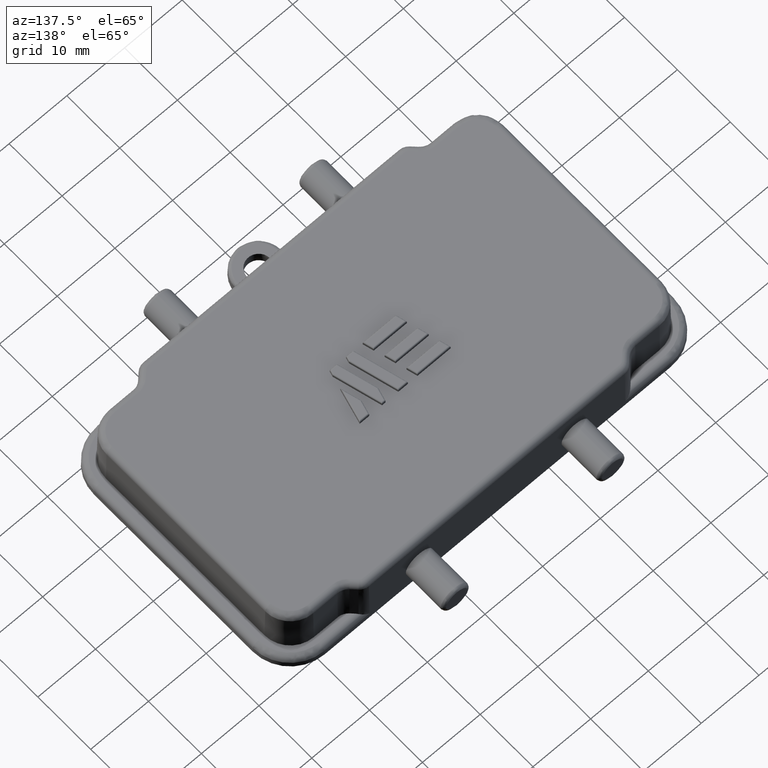
[diagram: clean part render]
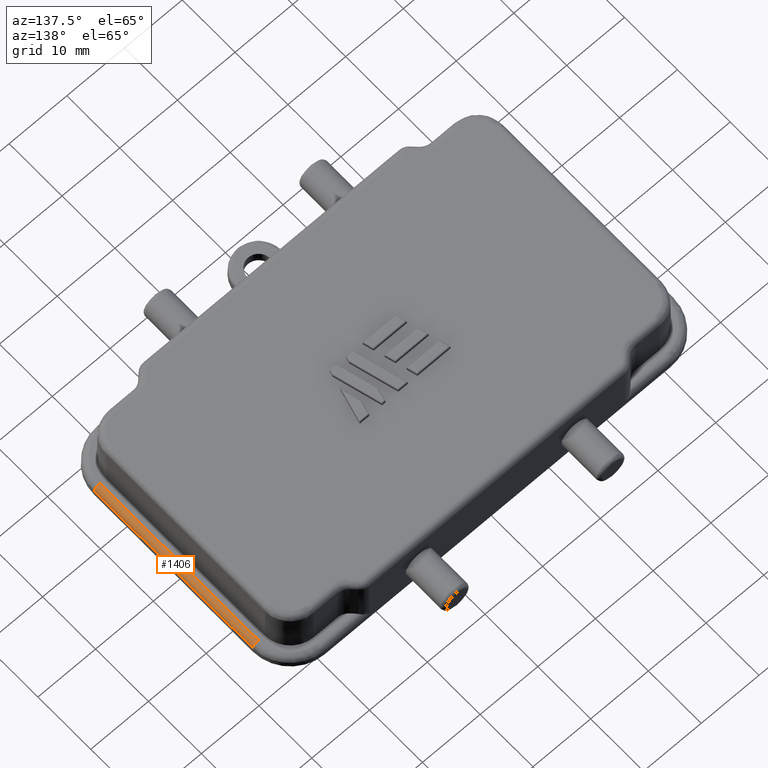
[diagram: same view with one face highlighted and labeled with its STEP entity id]
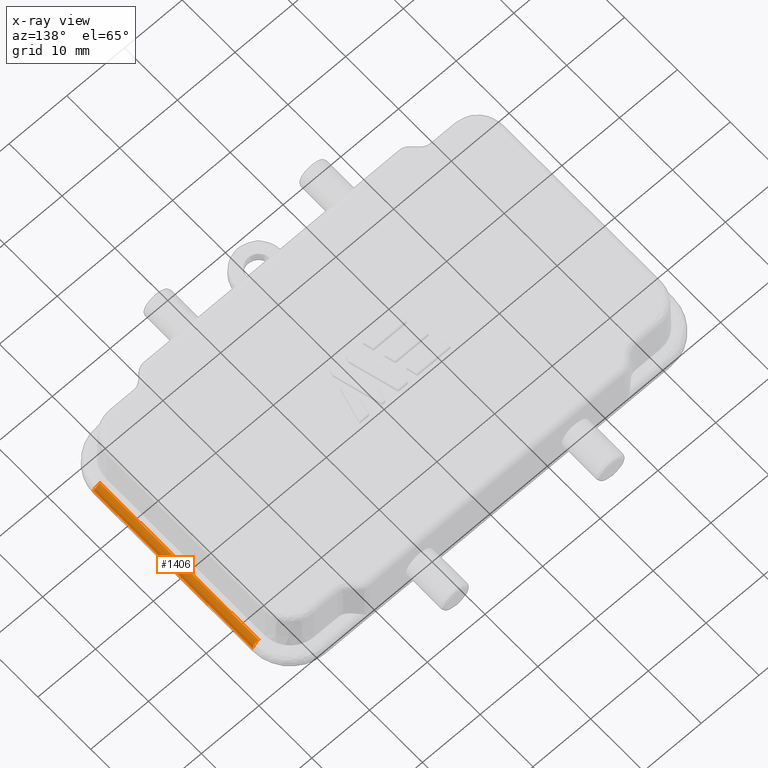
[diagram: x-ray of the same camera — body ghosted, the highlighted face saturated]
A machine part, auxiliary view. The second image highlights one B-rep face of the part: STEP entity #1406.
The next image is the same camera in x-ray: the body ghosted, the highlighted face saturated — about 0% of this face is hidden behind the body in this view.
In plain terms, the highlighted cylindrical surface (edge-blend (fillet) strip) has radius 1 mm, axis along (0, -1, 0).
Its self-contained STEP definition (entity closure, byte-faithful):
#685 = AXIS2_PLACEMENT_3D ( 'NONE', #3303, #4375, #7199 ) ;
#892 = VECTOR ( 'NONE', #6657, 39.37007874015748143 ) ;
#927 = ORIENTED_EDGE ( 'NONE', *, *, #1461, .F. ) ;
#1020 = CARTESIAN_POINT ( 'NONE',  ( 1.396944590827869925, 0.5905511811023623769, 0.1574803149606299191 ) ) ;
#1406 = ADVANCED_FACE ( 'NONE', ( #3819 ), #2801, .T. ) ;
#1461 = EDGE_CURVE ( 'NONE', #3125, #2050, #4916, .T. ) ;
#1906 = EDGE_CURVE ( 'NONE', #3125, #2447, #4154, .T. ) ;
#1943 = CARTESIAN_POINT ( 'NONE',  ( 1.436308673314537820, -0.5905511811023621549, 0.1187973388359928745 ) ) ;
#2050 = VERTEX_POINT ( 'NONE', #1943 ) ;
#2135 = CARTESIAN_POINT ( 'NONE',  ( 1.396944590827869925, 0.5905511811023623769, 0.1181102362204724532 ) ) ;
#2145 = CARTESIAN_POINT ( 'NONE',  ( 1.396944590827869703, -0.5905511811023621549, 0.1574803149606299191 ) ) ;
#2192 = CARTESIAN_POINT ( 'NONE',  ( 1.396944590827869037, -0.5905511811023621549, 0.1181102362204724532 ) ) ;
#2264 = DIRECTION ( 'NONE',  ( 1.000000000000000000, 0.000000000000000000, 0.000000000000000000 ) ) ;
#2299 = CIRCLE ( 'NONE', #6364, 0.03937007874015751446 ) ;
#2447 = VERTEX_POINT ( 'NONE', #1020 ) ;
#2589 = EDGE_CURVE ( 'NONE', #2050, #4080, #2299, .T. ) ;
#2801 = CYLINDRICAL_SURFACE ( 'NONE', #685, 0.03937007874015747977 ) ;
#2811 = DIRECTION ( 'NONE',  ( -0.000000000000000000, -1.000000000000000000, -0.000000000000000000 ) ) ;
#2879 = DIRECTION ( 'NONE',  ( 1.224646799147353207E-16, -1.000000000000000000, 0.000000000000000000 ) ) ;
#3125 = VERTEX_POINT ( 'NONE', #5563 ) ;
#3267 = CARTESIAN_POINT ( 'NONE',  ( 1.436308673314341089, -0.5905511811023621549, 0.1187973388361133614 ) ) ;
#3303 = CARTESIAN_POINT ( 'NONE',  ( 1.396944590827869925, -0.8464566929133858775, 0.1181102362204724532 ) ) ;
#3465 = EDGE_CURVE ( 'NONE', #2447, #4080, #6163, .T. ) ;
#3603 = EDGE_LOOP ( 'NONE', ( #5762, #927, #6212, #6533 ) ) ;
#3819 = FACE_OUTER_BOUND ( 'NONE', #3603, .T. ) ;
#4080 = VERTEX_POINT ( 'NONE', #2145 ) ;
#4154 = CIRCLE ( 'NONE', #5436, 0.03937007874015747977 ) ;
#4366 = DIRECTION ( 'NONE',  ( 0.000000000000000000, -1.000000000000000000, 0.000000000000000000 ) ) ;
#4375 = DIRECTION ( 'NONE',  ( 0.000000000000000000, -1.000000000000000000, 0.000000000000000000 ) ) ;
#4519 = VECTOR ( 'NONE', #2811, 39.37007874015748143 ) ;
#4916 = LINE ( 'NONE', #3267, #892 ) ;
#5053 = DIRECTION ( 'NONE',  ( 0.000000000000000000, 0.000000000000000000, -1.000000000000000000 ) ) ;
#5436 = AXIS2_PLACEMENT_3D ( 'NONE', #2135, #4366, #5053 ) ;
#5563 = CARTESIAN_POINT ( 'NONE',  ( 1.436308673314734996, 0.5905511811023621549, 0.1187973388358723598 ) ) ;
#5762 = ORIENTED_EDGE ( 'NONE', *, *, #2589, .F. ) ;
#6163 = LINE ( 'NONE', #6777, #4519 ) ;
#6212 = ORIENTED_EDGE ( 'NONE', *, *, #1906, .T. ) ;
#6364 = AXIS2_PLACEMENT_3D ( 'NONE', #2192, #2879, #2264 ) ;
#6533 = ORIENTED_EDGE ( 'NONE', *, *, #3465, .T. ) ;
#6657 = DIRECTION ( 'NONE',  ( -0.000000000000000000, -1.000000000000000000, -0.000000000000000000 ) ) ;
#6777 = CARTESIAN_POINT ( 'NONE',  ( 1.396944590827869925, -0.8464566929133858775, 0.1574803149606299191 ) ) ;
#7199 = DIRECTION ( 'NONE',  ( 0.000000000000000000, 0.000000000000000000, -1.000000000000000000 ) ) ;